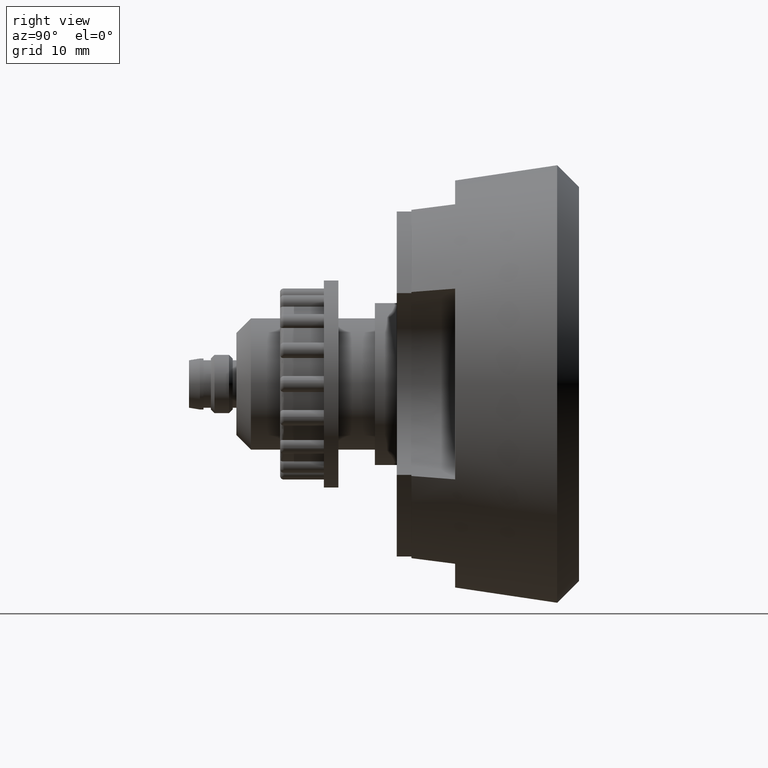
[diagram: clean part render]
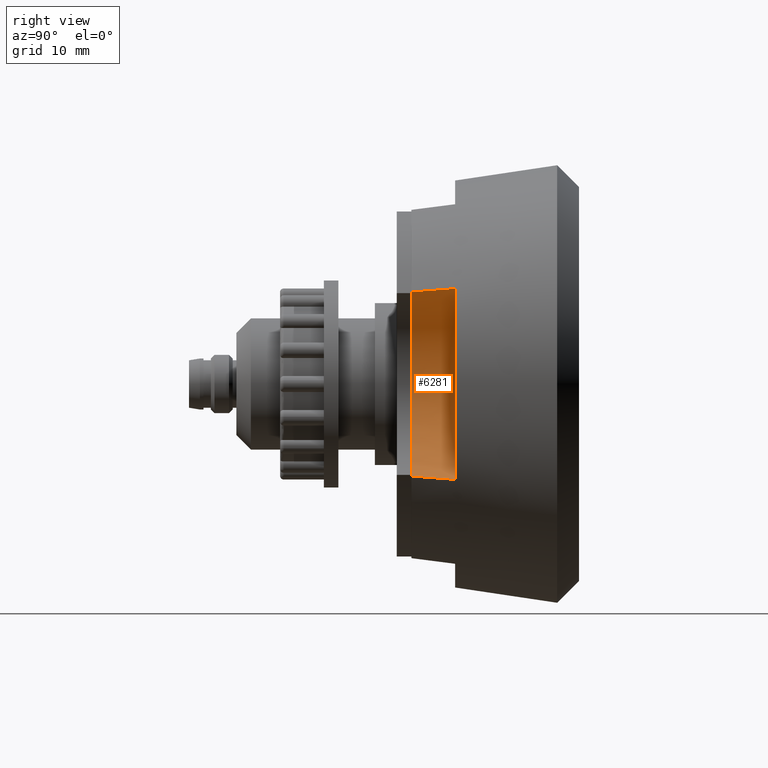
[diagram: same view with one face highlighted and labeled with its STEP entity id]
A machine part, right view. The second image highlights one B-rep face of the part: STEP entity #6281.
In plain terms, the highlighted cylindrical surface (partial cylindrical patch) has radius 15 mm, axis along (-0, -1, -0).
Its self-contained STEP definition (entity closure, byte-faithful):
#762 = CARTESIAN_POINT ( 'NONE',  ( 24.13655781690841451, 25.99992434162717814, 12.77717781541312192 ) ) ;
#881 = CARTESIAN_POINT ( 'NONE',  ( 24.65373338781819257, 30.00000000000000000, -13.07793434999361004 ) ) ;
#914 = CARTESIAN_POINT ( 'NONE',  ( 24.39304689913073432, 27.99992701513786741, -12.93149895761128576 ) ) ;
#1077 = CARTESIAN_POINT ( 'NONE',  ( 24.65373338781819967, 30.00000000000000000, 13.07793434999361359 ) ) ;
#1300 = EDGE_CURVE ( 'NONE', #5891, #2758, #3290, .T. ) ;
#1905 = B_SPLINE_CURVE_WITH_KNOTS ( 'NONE', 3,
 ( #881, #914, #3991, #3457 ),
 .UNSPECIFIED., .F., .F.,
 ( 4, 4 ),
 ( 0.0000000000000000000, 0.006066837002393394782 ),
 .UNSPECIFIED. ) ;
#2027 = CARTESIAN_POINT ( 'NONE',  ( 32.00000000000000000, 30.00000000000000000, 0.0000000000000000000 ) ) ;
#2166 = ORIENTED_EDGE ( 'NONE', *, *, #4101, .T. ) ;
#2217 = CARTESIAN_POINT ( 'NONE',  ( 23.88426623598041587, 23.99999999999999289, -12.61486684319547003 ) ) ;
#2228 = CIRCLE ( 'NONE', #6979, 15.00000000000000000 ) ;
#2727 = FACE_OUTER_BOUND ( 'NONE', #2765, .T. ) ;
#2758 = VERTEX_POINT ( 'NONE', #4599 ) ;
#2765 = EDGE_LOOP ( 'NONE', ( #4293, #2166, #6224, #4209 ) ) ;
#2842 = EDGE_CURVE ( 'NONE', #2758, #4117, #1905, .T. ) ;
#2910 = CARTESIAN_POINT ( 'NONE',  ( 24.39304689913073076, 27.99992701513787097, 12.93149895761128576 ) ) ;
#3149 = DIRECTION ( 'NONE',  ( -0.0000000000000000000, -1.000000000000000000, -0.0000000000000000000 ) ) ;
#3257 = DIRECTION ( 'NONE',  ( 0.0000000000000000000, 0.0000000000000000000, -1.000000000000000000 ) ) ;
#3290 = CIRCLE ( 'NONE', #3623, 15.00000000000000000 ) ;
#3457 = CARTESIAN_POINT ( 'NONE',  ( 23.88426623598041587, 23.99999999999999289, -12.61486684319547003 ) ) ;
#3570 = DIRECTION ( 'NONE',  ( 0.0000000000000000000, 0.0000000000000000000, -1.000000000000000000 ) ) ;
#3623 = AXIS2_PLACEMENT_3D ( 'NONE', #2027, #6920, #3807 ) ;
#3807 = DIRECTION ( 'NONE',  ( 0.0000000000000000000, 0.0000000000000000000, -1.000000000000000000 ) ) ;
#3991 = CARTESIAN_POINT ( 'NONE',  ( 24.13655781690841096, 25.99992434162717814, -12.77717781541311837 ) ) ;
#4047 = AXIS2_PLACEMENT_3D ( 'NONE', #6970, #3149, #3257 ) ;
#4101 = EDGE_CURVE ( 'NONE', #6768, #4117, #2228, .T. ) ;
#4104 = DIRECTION ( 'NONE',  ( -0.0000000000000000000, -1.000000000000000000, -0.0000000000000000000 ) ) ;
#4117 = VERTEX_POINT ( 'NONE', #2217 ) ;
#4209 = ORIENTED_EDGE ( 'NONE', *, *, #1300, .F. ) ;
#4249 = CYLINDRICAL_SURFACE ( 'NONE', #4047, 15.00000000000000000 ) ;
#4293 = ORIENTED_EDGE ( 'NONE', *, *, #5576, .F. ) ;
#4599 = CARTESIAN_POINT ( 'NONE',  ( 24.65373338781819257, 30.00000000000000000, -13.07793434999361004 ) ) ;
#5576 = EDGE_CURVE ( 'NONE', #6768, #5891, #6295, .T. ) ;
#5891 = VERTEX_POINT ( 'NONE', #1077 ) ;
#6107 = CARTESIAN_POINT ( 'NONE',  ( 23.88426623598041942, 23.99999999999999645, 12.61486684319547180 ) ) ;
#6224 = ORIENTED_EDGE ( 'NONE', *, *, #2842, .F. ) ;
#6281 = ADVANCED_FACE ( 'NONE', ( #2727 ), #4249, .F. ) ;
#6295 = B_SPLINE_CURVE_WITH_KNOTS ( 'NONE', 3,
 ( #6107, #762, #2910, #6601 ),
 .UNSPECIFIED., .F., .F.,
 ( 4, 4 ),
 ( 0.0000000000000000000, 0.006066837002393388710 ),
 .UNSPECIFIED. ) ;
#6601 = CARTESIAN_POINT ( 'NONE',  ( 24.65373338781819967, 30.00000000000000000, 13.07793434999361359 ) ) ;
#6768 = VERTEX_POINT ( 'NONE', #6852 ) ;
#6791 = CARTESIAN_POINT ( 'NONE',  ( 32.00000000000000000, 23.99999999999999645, 0.0000000000000000000 ) ) ;
#6852 = CARTESIAN_POINT ( 'NONE',  ( 23.88426623598041942, 23.99999999999999645, 12.61486684319547180 ) ) ;
#6920 = DIRECTION ( 'NONE',  ( -0.0000000000000000000, -1.000000000000000000, -0.0000000000000000000 ) ) ;
#6970 = CARTESIAN_POINT ( 'NONE',  ( 32.00000000000000000, 30.00000000000000000, 0.0000000000000000000 ) ) ;
#6979 = AXIS2_PLACEMENT_3D ( 'NONE', #6791, #4104, #3570 ) ;